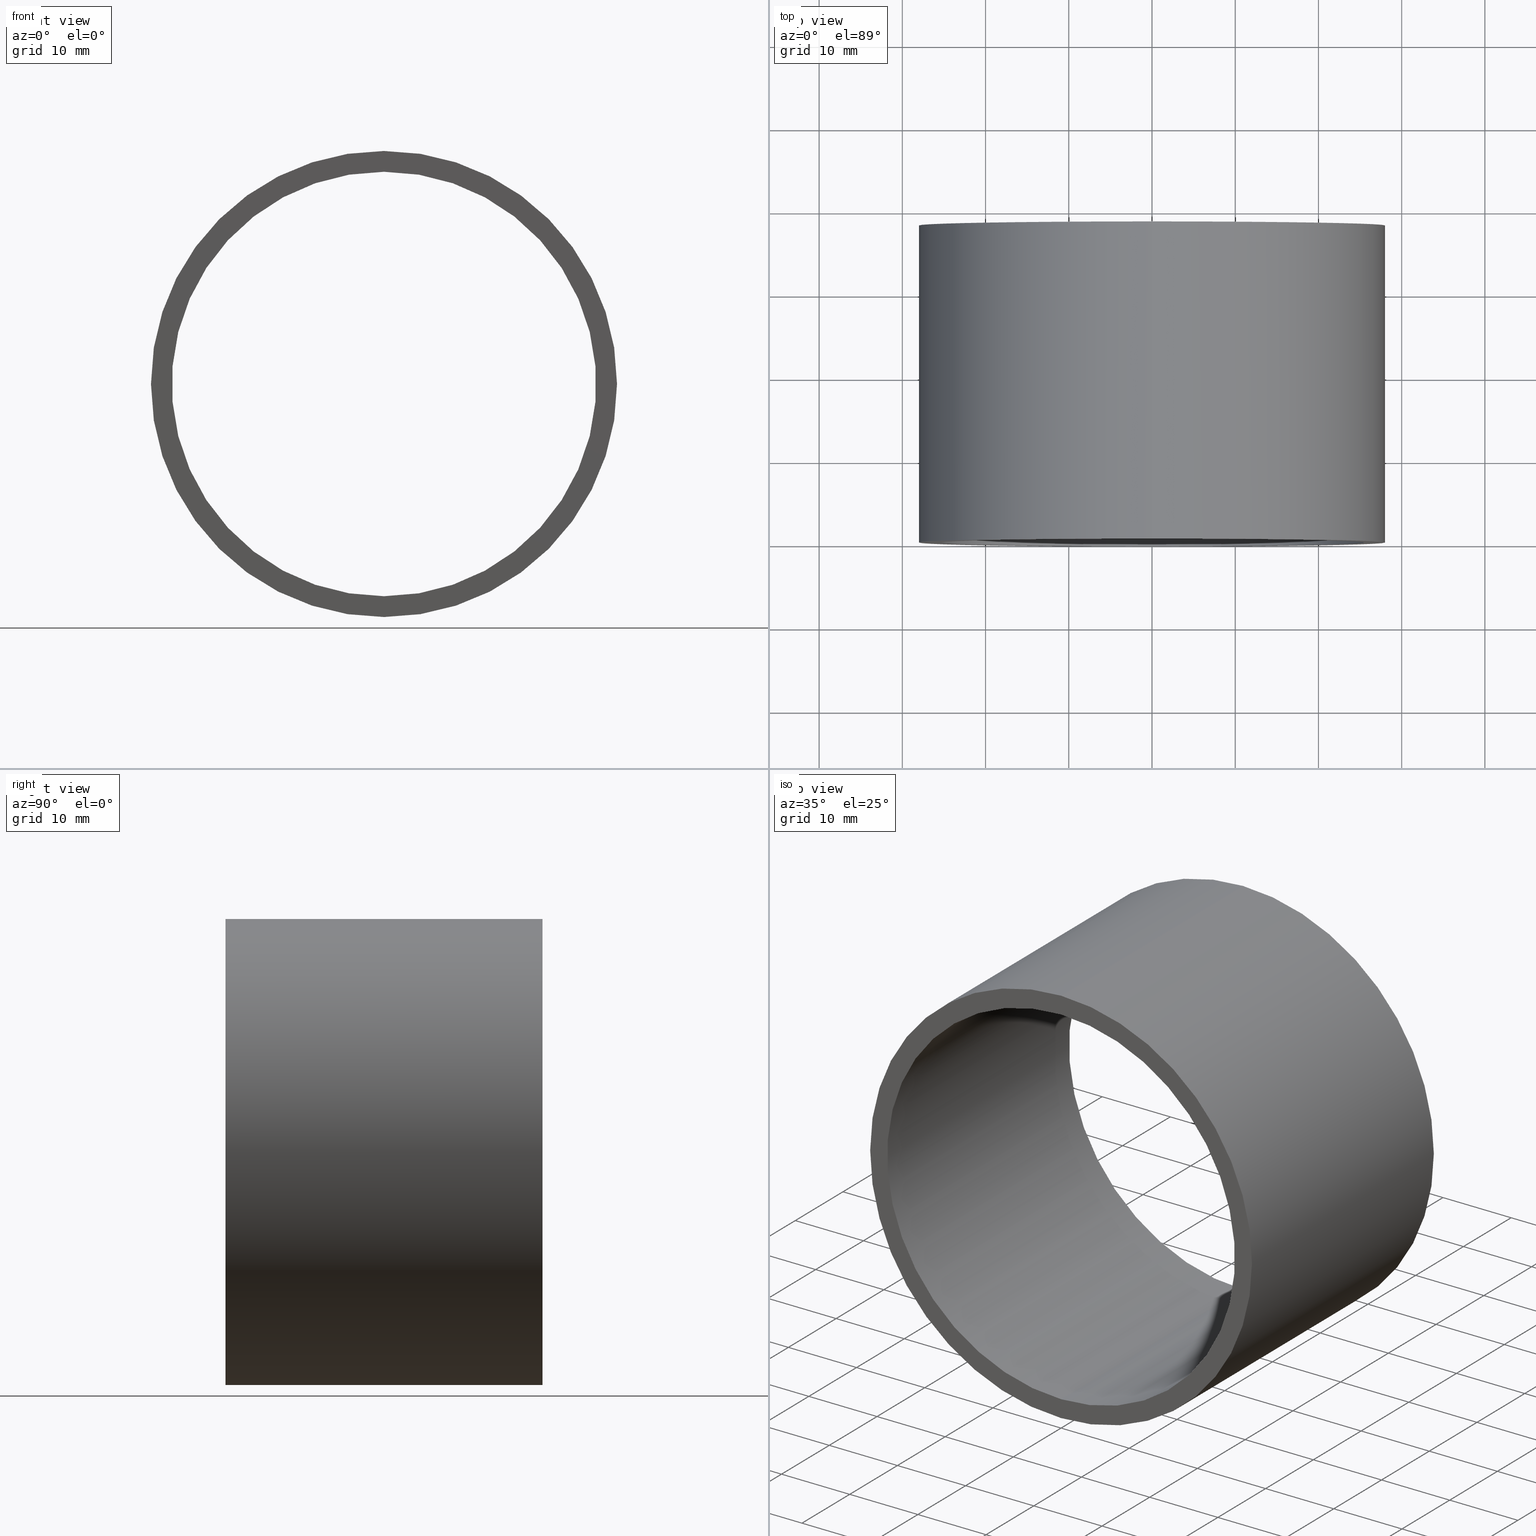
[diagram: canonical four-view strip — front | top / right | iso, engineering-drawing reading convention]
A machine part, canonical four-view strip (front | top / right | iso — engineering-drawing reading convention). The complete STEP part file that produces these views, byte-faithful:
ISO-10303-21;
HEADER;
FILE_DESCRIPTION (( 'STEP AP214' ),
    '1' );
FILE_NAME ('503008.STEP',
    '2019-09-04T06:18:58',
    ( '' ),
    ( '' ),
    'SwSTEP 2.0',
    'SolidWorks 2016',
    '' );
FILE_SCHEMA (( 'AUTOMOTIVE_DESIGN' ));
ENDSEC;

DATA;
#1 = EDGE_CURVE ( 'NONE', #181, #240, #42, .T. ) ;
#2 = FACE_BOUND ( 'NONE', #231, .T. ) ;
#3 =( LENGTH_UNIT ( ) NAMED_UNIT ( * ) SI_UNIT ( .MILLI., .METRE. ) );
#4 = MANIFOLD_SOLID_BREP ( '��ת1', #103 ) ;
#5 = DIRECTION ( 'NONE',  ( 0.0000000000000000000, 0.0000000000000000000, 1.000000000000000000 ) ) ;
#6 = SURFACE_STYLE_USAGE ( .BOTH. , #156 ) ;
#7 = AXIS2_PLACEMENT_3D ( 'NONE', #226, #164, #53 ) ;
#8 = CARTESIAN_POINT ( 'NONE',  ( 3.122849337825752200E-015, 38.09999999999999400, -25.50000000000001100 ) ) ;
#9 = ADVANCED_BREP_SHAPE_REPRESENTATION ( '503008', ( #4, #7 ), #221 ) ;
#10 = CIRCLE ( 'NONE', #189, 25.50000000000001100 ) ;
#11 = VERTEX_POINT ( 'NONE', #8 ) ;
#12 = DIRECTION ( 'NONE',  ( 0.0000000000000000000, 0.0000000000000000000, 1.000000000000000000 ) ) ;
#13 = CARTESIAN_POINT ( 'NONE',  ( 0.0000000000000000000, 38.09999999999999400, 0.0000000000000000000 ) ) ;
#14 = ADVANCED_FACE ( 'NONE', ( #2, #97 ), #153, .F. ) ;
#15 = ORIENTED_EDGE ( 'NONE', *, *, #122, .F. ) ;
#16 =( GEOMETRIC_REPRESENTATION_CONTEXT ( 3 ) GLOBAL_UNCERTAINTY_ASSIGNED_CONTEXT ( ( #86 ) ) GLOBAL_UNIT_ASSIGNED_CONTEXT ( ( #191, #110, #93 ) ) REPRESENTATION_CONTEXT ( 'NONE', 'WORKASPACE' ) );
#17 = CIRCLE ( 'NONE', #72, 28.00000000000002100 ) ;
#18 = DIRECTION ( 'NONE',  ( -0.0000000000000000000, 1.000000000000000000, -0.0000000000000000000 ) ) ;
#19 = CYLINDRICAL_SURFACE ( 'NONE', #163, 28.00000000000002100 ) ;
#20 = CARTESIAN_POINT ( 'NONE',  ( 0.0000000000000000000, -2.775557561562891400E-014, 28.00000000000002100 ) ) ;
#21 = AXIS2_PLACEMENT_3D ( 'NONE', #76, #195, #12 ) ;
#22 = COLOUR_RGB ( '',1.000000000000000000, 1.000000000000000000, 1.000000000000000000 ) ;
#23 = CARTESIAN_POINT ( 'NONE',  ( 0.0000000000000000000, 38.09999999999999400, 0.0000000000000000000 ) ) ;
#24 = VECTOR ( 'NONE', #18, 1000.000000000000000 ) ;
#25 = DIRECTION ( 'NONE',  ( 0.0000000000000000000, 0.0000000000000000000, 1.000000000000000000 ) ) ;
#26 = FILL_AREA_STYLE ('',( #74 ) ) ;
#27 = EDGE_CURVE ( 'NONE', #11, #31, #99, .T. ) ;
#28 = ORIENTED_EDGE ( 'NONE', *, *, #209, .F. ) ;
#29 = DIRECTION ( 'NONE',  ( 0.0000000000000000000, 0.0000000000000000000, 1.000000000000000000 ) ) ;
#30 = CYLINDRICAL_SURFACE ( 'NONE', #130, 25.50000000000001400 ) ;
#31 = VERTEX_POINT ( 'NONE', #215 ) ;
#32 = CARTESIAN_POINT ( 'NONE',  ( 0.0000000000000000000, -2.775557561562891400E-014, 0.0000000000000000000 ) ) ;
#33 = UNCERTAINTY_MEASURE_WITH_UNIT (LENGTH_MEASURE( 1.000000000000000100E-005 ), #3, 'distance_accuracy_value', 'NONE');
#34 = CARTESIAN_POINT ( 'NONE',  ( 3.429011037612591600E-015, -2.775557561562891400E-014, -28.00000000000002100 ) ) ;
#35 = EDGE_LOOP ( 'NONE', ( #187, #132 ) ) ;
#36 =( NAMED_UNIT ( * ) PLANE_ANGLE_UNIT ( ) SI_UNIT ( $, .RADIAN. ) );
#37 =( NAMED_UNIT ( * ) SI_UNIT ( $, .STERADIAN. ) SOLID_ANGLE_UNIT ( ) );
#38 = PRODUCT_CONTEXT ( 'NONE', #166, 'mechanical' ) ;
#39 = FILL_AREA_STYLE_COLOUR ( '', #230 ) ;
#40 = VERTEX_POINT ( 'NONE', #133 ) ;
#41 = SURFACE_STYLE_FILL_AREA ( #26 ) ;
#42 = CIRCLE ( 'NONE', #92, 28.00000000000002100 ) ;
#43 = DIRECTION ( 'NONE',  ( -0.0000000000000000000, 1.000000000000000000, -0.0000000000000000000 ) ) ;
#44 =( NAMED_UNIT ( * ) PLANE_ANGLE_UNIT ( ) SI_UNIT ( $, .RADIAN. ) );
#45 = SURFACE_STYLE_USAGE ( .BOTH. , #105 ) ;
#46 = ORIENTED_EDGE ( 'NONE', *, *, #109, .F. ) ;
#47 = PRODUCT_DEFINITION_FORMATION_WITH_SPECIFIED_SOURCE ( '�κ�', '', #184, .NOT_KNOWN. ) ;
#48 = DIRECTION ( 'NONE',  ( 0.0000000000000000000, -1.000000000000000000, 0.0000000000000000000 ) ) ;
#49 = EDGE_CURVE ( 'NONE', #31, #11, #10, .T. ) ;
#50 = AXIS2_PLACEMENT_3D ( 'NONE', #96, #48, #62 ) ;
#51 = LINE ( 'NONE', #202, #144 ) ;
#52 = CARTESIAN_POINT ( 'NONE',  ( 0.0000000000000000000, 161.3761669434274500, 0.0000000000000000000 ) ) ;
#53 = DIRECTION ( 'NONE',  ( 1.000000000000000000, 0.0000000000000000000, 0.0000000000000000000 ) ) ;
#54 = EDGE_LOOP ( 'NONE', ( #82, #182 ) ) ;
#55 = SURFACE_STYLE_USAGE ( .BOTH. , #128 ) ;
#56 = DIRECTION ( 'NONE',  ( 0.0000000000000000000, 0.0000000000000000000, 1.000000000000000000 ) ) ;
#57 = DIRECTION ( 'NONE',  ( 0.0000000000000000000, 0.0000000000000000000, 1.000000000000000000 ) ) ;
#58 = DIRECTION ( 'NONE',  ( 0.0000000000000000000, 0.0000000000000000000, 1.000000000000000000 ) ) ;
#59 = FACE_OUTER_BOUND ( 'NONE', #236, .T. ) ;
#60 = EDGE_LOOP ( 'NONE', ( #129, #155 ) ) ;
#61 = DIRECTION ( 'NONE',  ( -0.0000000000000000000, 1.000000000000000000, -0.0000000000000000000 ) ) ;
#62 = DIRECTION ( 'NONE',  ( 0.0000000000000000000, -0.0000000000000000000, -1.000000000000000000 ) ) ;
#63 = ADVANCED_FACE ( 'NONE', ( #59 ), #168, .F. ) ;
#64 = CARTESIAN_POINT ( 'NONE',  ( 3.122849337825752600E-015, 161.3761669434274500, -25.50000000000001400 ) ) ;
#65 = EDGE_CURVE ( 'NONE', #207, #181, #217, .T. ) ;
#66 = CARTESIAN_POINT ( 'NONE',  ( 0.0000000000000000000, -2.775557561562891400E-014, 0.0000000000000000000 ) ) ;
#67 = STYLED_ITEM ( 'NONE', ( #151 ), #63 ) ;
#68 = SURFACE_STYLE_FILL_AREA ( #90 ) ;
#69 =( NAMED_UNIT ( * ) PLANE_ANGLE_UNIT ( ) SI_UNIT ( $, .RADIAN. ) );
#70 = FACE_OUTER_BOUND ( 'NONE', #125, .T. ) ;
#71 = PRESENTATION_LAYER_ASSIGNMENT (  '', '', ( #146 ) ) ;
#72 = AXIS2_PLACEMENT_3D ( 'NONE', #32, #239, #115 ) ;
#73 = ORIENTED_EDGE ( 'NONE', *, *, #194, .T. ) ;
#74 = FILL_AREA_STYLE_COLOUR ( '', #158 ) ;
#75 = ORIENTED_EDGE ( 'NONE', *, *, #219, .T. ) ;
#76 = CARTESIAN_POINT ( 'NONE',  ( 25.50000000000001400, -1.390324872067691800E-014, 0.0000000000000000000 ) ) ;
#77 = DIRECTION ( 'NONE',  ( -0.0000000000000000000, 1.000000000000000000, -0.0000000000000000000 ) ) ;
#78 = EDGE_CURVE ( 'NONE', #240, #181, #205, .T. ) ;
#79 = DIRECTION ( 'NONE',  ( -0.0000000000000000000, 1.000000000000000000, -0.0000000000000000000 ) ) ;
#80 = ORIENTED_EDGE ( 'NONE', *, *, #78, .F. ) ;
#81 = PRODUCT_DEFINITION_SHAPE ( 'NONE', 'NONE',  #188 ) ;
#82 = ORIENTED_EDGE ( 'NONE', *, *, #1, .T. ) ;
#83 = PRODUCT_RELATED_PRODUCT_CATEGORY ( 'part', '', ( #184 ) ) ;
#84 =( LENGTH_UNIT ( ) NAMED_UNIT ( * ) SI_UNIT ( .MILLI., .METRE. ) );
#85 = DIRECTION ( 'NONE',  ( -0.0000000000000000000, 1.000000000000000000, -0.0000000000000000000 ) ) ;
#86 = UNCERTAINTY_MEASURE_WITH_UNIT (LENGTH_MEASURE( 1.000000000000000100E-005 ), #191, 'distance_accuracy_value', 'NONE');
#87 = APPLICATION_CONTEXT ( 'automotive_design' ) ;
#88 = SURFACE_STYLE_FILL_AREA ( #242 ) ;
#89 = VERTEX_POINT ( 'NONE', #212 ) ;
#90 = FILL_AREA_STYLE ('',( #131 ) ) ;
#91 = PRESENTATION_STYLE_ASSIGNMENT (( #6 ) ) ;
#92 = AXIS2_PLACEMENT_3D ( 'NONE', #23, #43, #57 ) ;
#93 =( NAMED_UNIT ( * ) SI_UNIT ( $, .STERADIAN. ) SOLID_ANGLE_UNIT ( ) );
#94 = SURFACE_STYLE_USAGE ( .BOTH. , #152 ) ;
#95 = DIRECTION ( 'NONE',  ( 0.0000000000000000000, 0.0000000000000000000, 1.000000000000000000 ) ) ;
#96 = CARTESIAN_POINT ( 'NONE',  ( 25.50000000000001100, 38.09999999999998700, 0.0000000000000000000 ) ) ;
#97 = FACE_OUTER_BOUND ( 'NONE', #54, .T. ) ;
#98 = ORIENTED_EDGE ( 'NONE', *, *, #173, .T. ) ;
#99 = CIRCLE ( 'NONE', #201, 25.50000000000001100 ) ;
#100 = MECHANICAL_DESIGN_GEOMETRIC_PRESENTATION_REPRESENTATION (  '', ( #146 ), #16 ) ;
#101 = DIRECTION ( 'NONE',  ( -0.0000000000000000000, 1.000000000000000000, -0.0000000000000000000 ) ) ;
#102 = CARTESIAN_POINT ( 'NONE',  ( 3.429011037612591600E-015, 161.3761669434274500, -28.00000000000002100 ) ) ;
#103 = CLOSED_SHELL ( 'NONE', ( #196, #241, #117, #197, #14, #63 ) ) ;
#104 =( LENGTH_UNIT ( ) NAMED_UNIT ( * ) SI_UNIT ( .MILLI., .METRE. ) );
#105 = SURFACE_SIDE_STYLE ('',( #68 ) ) ;
#106 = MECHANICAL_DESIGN_GEOMETRIC_PRESENTATION_REPRESENTATION (  '', ( #67 ), #136 ) ;
#107 = LINE ( 'NONE', #64, #211 ) ;
#108 =( GEOMETRIC_REPRESENTATION_CONTEXT ( 3 ) GLOBAL_UNCERTAINTY_ASSIGNED_CONTEXT ( ( #33 ) ) GLOBAL_UNIT_ASSIGNED_CONTEXT ( ( #3, #127, #37 ) ) REPRESENTATION_CONTEXT ( 'NONE', 'WORKASPACE' ) );
#109 = EDGE_CURVE ( 'NONE', #89, #11, #107, .T. ) ;
#110 =( NAMED_UNIT ( * ) PLANE_ANGLE_UNIT ( ) SI_UNIT ( $, .RADIAN. ) );
#111 = DIRECTION ( 'NONE',  ( 0.0000000000000000000, 0.0000000000000000000, 1.000000000000000000 ) ) ;
#112 = DIRECTION ( 'NONE',  ( -0.0000000000000000000, 1.000000000000000000, -0.0000000000000000000 ) ) ;
#113 = ORIENTED_EDGE ( 'NONE', *, *, #194, .F. ) ;
#114 = DIRECTION ( 'NONE',  ( -0.0000000000000000000, 1.000000000000000000, -0.0000000000000000000 ) ) ;
#115 = DIRECTION ( 'NONE',  ( 0.0000000000000000000, 0.0000000000000000000, 1.000000000000000000 ) ) ;
#116 = CIRCLE ( 'NONE', #179, 28.00000000000002100 ) ;
#117 = ADVANCED_FACE ( 'NONE', ( #193, #138 ), #214, .F. ) ;
#118 = ORIENTED_EDGE ( 'NONE', *, *, #65, .F. ) ;
#119 = UNCERTAINTY_MEASURE_WITH_UNIT (LENGTH_MEASURE( 1.000000000000000100E-005 ), #104, 'distance_accuracy_value', 'NONE');
#120 = PRESENTATION_LAYER_ASSIGNMENT (  '', '', ( #176 ) ) ;
#121 = ORIENTED_EDGE ( 'NONE', *, *, #49, .F. ) ;
#122 = EDGE_CURVE ( 'NONE', #40, #89, #154, .T. ) ;
#123 = LINE ( 'NONE', #102, #24 ) ;
#124 = CARTESIAN_POINT ( 'NONE',  ( 3.429011037612591600E-015, 38.09999999999999400, -28.00000000000002100 ) ) ;
#125 = EDGE_LOOP ( 'NONE', ( #28, #169, #172, #113 ) ) ;
#126 = AXIS2_PLACEMENT_3D ( 'NONE', #234, #232, #95 ) ;
#127 =( NAMED_UNIT ( * ) PLANE_ANGLE_UNIT ( ) SI_UNIT ( $, .RADIAN. ) );
#128 = SURFACE_SIDE_STYLE ('',( #161 ) ) ;
#129 = ORIENTED_EDGE ( 'NONE', *, *, #173, .F. ) ;
#130 = AXIS2_PLACEMENT_3D ( 'NONE', #223, #85, #186 ) ;
#131 = FILL_AREA_STYLE_COLOUR ( '', #22 ) ;
#132 = ORIENTED_EDGE ( 'NONE', *, *, #209, .T. ) ;
#133 = CARTESIAN_POINT ( 'NONE',  ( 0.0000000000000000000, -2.775557561562891400E-014, 25.50000000000001400 ) ) ;
#134 = VECTOR ( 'NONE', #61, 1000.000000000000000 ) ;
#135 = DIRECTION ( 'NONE',  ( -0.0000000000000000000, 1.000000000000000000, -0.0000000000000000000 ) ) ;
#136 =( GEOMETRIC_REPRESENTATION_CONTEXT ( 3 ) GLOBAL_UNCERTAINTY_ASSIGNED_CONTEXT ( ( #145 ) ) GLOBAL_UNIT_ASSIGNED_CONTEXT ( ( #237, #44, #213 ) ) REPRESENTATION_CONTEXT ( 'NONE', 'WORKASPACE' ) );
#137 = DIRECTION ( 'NONE',  ( -0.0000000000000000000, 1.000000000000000000, -0.0000000000000000000 ) ) ;
#138 = FACE_BOUND ( 'NONE', #35, .T. ) ;
#139 = FILL_AREA_STYLE_COLOUR ( '', #140 ) ;
#140 = COLOUR_RGB ( '',1.000000000000000000, 1.000000000000000000, 1.000000000000000000 ) ;
#141 = EDGE_LOOP ( 'NONE', ( #98, #75, #220, #118 ) ) ;
#142 = AXIS2_PLACEMENT_3D ( 'NONE', #149, #148, #56 ) ;
#143 = PRESENTATION_STYLE_ASSIGNMENT (( #55 ) ) ;
#144 = VECTOR ( 'NONE', #79, 1000.000000000000000 ) ;
#145 = UNCERTAINTY_MEASURE_WITH_UNIT (LENGTH_MEASURE( 1.000000000000000100E-005 ), #237, 'distance_accuracy_value', 'NONE');
#146 = STYLED_ITEM ( 'NONE', ( #203 ), #4 ) ;
#147 = DIRECTION ( 'NONE',  ( 0.0000000000000000000, 0.0000000000000000000, 1.000000000000000000 ) ) ;
#148 = DIRECTION ( 'NONE',  ( -0.0000000000000000000, 1.000000000000000000, -0.0000000000000000000 ) ) ;
#149 = CARTESIAN_POINT ( 'NONE',  ( 0.0000000000000000000, -2.775557561562891400E-014, 0.0000000000000000000 ) ) ;
#150 = MECHANICAL_DESIGN_GEOMETRIC_PRESENTATION_REPRESENTATION (  '', ( #176 ), #233 ) ;
#151 = PRESENTATION_STYLE_ASSIGNMENT (( #94 ) ) ;
#152 = SURFACE_SIDE_STYLE ('',( #41 ) ) ;
#153 = PLANE ( 'NONE',  #50 ) ;
#154 = CIRCLE ( 'NONE', #198, 25.50000000000001400 ) ;
#155 = ORIENTED_EDGE ( 'NONE', *, *, #180, .F. ) ;
#156 = SURFACE_SIDE_STYLE ('',( #88 ) ) ;
#157 = PRESENTATION_LAYER_ASSIGNMENT (  '', '', ( #238 ) ) ;
#158 = COLOUR_RGB ( '',1.000000000000000000, 1.000000000000000000, 1.000000000000000000 ) ;
#159 = FACE_OUTER_BOUND ( 'NONE', #141, .T. ) ;
#160 = ORIENTED_EDGE ( 'NONE', *, *, #27, .F. ) ;
#161 = SURFACE_STYLE_FILL_AREA ( #183 ) ;
#162 =( NAMED_UNIT ( * ) SI_UNIT ( $, .STERADIAN. ) SOLID_ANGLE_UNIT ( ) );
#163 = AXIS2_PLACEMENT_3D ( 'NONE', #185, #208, #147 ) ;
#164 = DIRECTION ( 'NONE',  ( 0.0000000000000000000, 0.0000000000000000000, 1.000000000000000000 ) ) ;
#165 = APPLICATION_PROTOCOL_DEFINITION ( 'draft international standard', 'automotive_design', 1998, #166 ) ;
#166 = APPLICATION_CONTEXT ( 'automotive_design' ) ;
#167 = ORIENTED_EDGE ( 'NONE', *, *, #49, .T. ) ;
#168 = CYLINDRICAL_SURFACE ( 'NONE', #126, 25.50000000000001400 ) ;
#169 = ORIENTED_EDGE ( 'NONE', *, *, #109, .T. ) ;
#170 = CARTESIAN_POINT ( 'NONE',  ( 0.0000000000000000000, 161.3761669434274500, 28.00000000000002100 ) ) ;
#171 = MECHANICAL_DESIGN_GEOMETRIC_PRESENTATION_REPRESENTATION (  '', ( #238 ), #108 ) ;
#172 = ORIENTED_EDGE ( 'NONE', *, *, #27, .T. ) ;
#173 = EDGE_CURVE ( 'NONE', #207, #229, #116, .T. ) ;
#174 = DIRECTION ( 'NONE',  ( -0.0000000000000000000, 1.000000000000000000, -0.0000000000000000000 ) ) ;
#175 = CARTESIAN_POINT ( 'NONE',  ( 0.0000000000000000000, 38.09999999999999400, 28.00000000000002100 ) ) ;
#176 = STYLED_ITEM ( 'NONE', ( #91 ), #196 ) ;
#177 = FACE_OUTER_BOUND ( 'NONE', #218, .T. ) ;
#178 = ORIENTED_EDGE ( 'NONE', *, *, #219, .F. ) ;
#179 = AXIS2_PLACEMENT_3D ( 'NONE', #200, #77, #29 ) ;
#180 = EDGE_CURVE ( 'NONE', #229, #207, #17, .T. ) ;
#181 = VERTEX_POINT ( 'NONE', #175 ) ;
#182 = ORIENTED_EDGE ( 'NONE', *, *, #78, .T. ) ;
#183 = FILL_AREA_STYLE ('',( #39 ) ) ;
#184 = PRODUCT ( '503008', '503008', '', ( #38 ) ) ;
#185 = CARTESIAN_POINT ( 'NONE',  ( 0.0000000000000000000, 161.3761669434274500, 0.0000000000000000000 ) ) ;
#186 = DIRECTION ( 'NONE',  ( 0.0000000000000000000, 0.0000000000000000000, 1.000000000000000000 ) ) ;
#187 = ORIENTED_EDGE ( 'NONE', *, *, #122, .T. ) ;
#188 = PRODUCT_DEFINITION ( 'δ֪', '', #47, #235 ) ;
#189 = AXIS2_PLACEMENT_3D ( 'NONE', #192, #137, #25 ) ;
#190 = UNCERTAINTY_MEASURE_WITH_UNIT (LENGTH_MEASURE( 1.000000000000000100E-005 ), #84, 'distance_accuracy_value', 'NONE');
#191 =( LENGTH_UNIT ( ) NAMED_UNIT ( * ) SI_UNIT ( .MILLI., .METRE. ) );
#192 = CARTESIAN_POINT ( 'NONE',  ( 0.0000000000000000000, 38.09999999999999400, 0.0000000000000000000 ) ) ;
#193 = FACE_OUTER_BOUND ( 'NONE', #60, .T. ) ;
#194 = EDGE_CURVE ( 'NONE', #40, #31, #51, .T. ) ;
#195 = DIRECTION ( 'NONE',  ( -0.0000000000000000000, 1.000000000000000000, 0.0000000000000000000 ) ) ;
#196 = ADVANCED_FACE ( 'NONE', ( #70 ), #30, .F. ) ;
#197 = ADVANCED_FACE ( 'NONE', ( #177 ), #19, .T. ) ;
#198 = AXIS2_PLACEMENT_3D ( 'NONE', #66, #174, #199 ) ;
#199 = DIRECTION ( 'NONE',  ( 0.0000000000000000000, 0.0000000000000000000, 1.000000000000000000 ) ) ;
#200 = CARTESIAN_POINT ( 'NONE',  ( 0.0000000000000000000, -2.775557561562891400E-014, 0.0000000000000000000 ) ) ;
#201 = AXIS2_PLACEMENT_3D ( 'NONE', #216, #114, #58 ) ;
#202 = CARTESIAN_POINT ( 'NONE',  ( 0.0000000000000000000, 161.3761669434274500, 25.50000000000001400 ) ) ;
#203 = PRESENTATION_STYLE_ASSIGNMENT (( #45 ) ) ;
#204 = PRESENTATION_LAYER_ASSIGNMENT (  '', '', ( #67 ) ) ;
#205 = CIRCLE ( 'NONE', #222, 28.00000000000002100 ) ;
#206 = CYLINDRICAL_SURFACE ( 'NONE', #244, 28.00000000000002100 ) ;
#207 = VERTEX_POINT ( 'NONE', #20 ) ;
#208 = DIRECTION ( 'NONE',  ( -0.0000000000000000000, 1.000000000000000000, -0.0000000000000000000 ) ) ;
#209 = EDGE_CURVE ( 'NONE', #89, #40, #224, .T. ) ;
#210 = SHAPE_DEFINITION_REPRESENTATION ( #81, #9 ) ;
#211 = VECTOR ( 'NONE', #112, 1000.000000000000000 ) ;
#212 = CARTESIAN_POINT ( 'NONE',  ( 3.122849337825752600E-015, -2.775557561562891400E-014, -25.50000000000001400 ) ) ;
#213 =( NAMED_UNIT ( * ) SI_UNIT ( $, .STERADIAN. ) SOLID_ANGLE_UNIT ( ) );
#214 = PLANE ( 'NONE',  #21 ) ;
#215 = CARTESIAN_POINT ( 'NONE',  ( 0.0000000000000000000, 38.09999999999999400, 25.50000000000001100 ) ) ;
#216 = CARTESIAN_POINT ( 'NONE',  ( 0.0000000000000000000, 38.09999999999999400, 0.0000000000000000000 ) ) ;
#217 = LINE ( 'NONE', #170, #134 ) ;
#218 = EDGE_LOOP ( 'NONE', ( #178, #243, #225, #80 ) ) ;
#219 = EDGE_CURVE ( 'NONE', #229, #240, #123, .T. ) ;
#220 = ORIENTED_EDGE ( 'NONE', *, *, #1, .F. ) ;
#221 =( GEOMETRIC_REPRESENTATION_CONTEXT ( 3 ) GLOBAL_UNCERTAINTY_ASSIGNED_CONTEXT ( ( #190 ) ) GLOBAL_UNIT_ASSIGNED_CONTEXT ( ( #84, #36, #162 ) ) REPRESENTATION_CONTEXT ( 'NONE', 'WORKASPACE' ) );
#222 = AXIS2_PLACEMENT_3D ( 'NONE', #13, #135, #111 ) ;
#223 = CARTESIAN_POINT ( 'NONE',  ( 0.0000000000000000000, 161.3761669434274500, 0.0000000000000000000 ) ) ;
#224 = CIRCLE ( 'NONE', #142, 25.50000000000001400 ) ;
#225 = ORIENTED_EDGE ( 'NONE', *, *, #65, .T. ) ;
#226 = CARTESIAN_POINT ( 'NONE',  ( 0.0000000000000000000, 0.0000000000000000000, 0.0000000000000000000 ) ) ;
#227 = APPLICATION_PROTOCOL_DEFINITION ( 'draft international standard', 'automotive_design', 1998, #87 ) ;
#228 =( NAMED_UNIT ( * ) SI_UNIT ( $, .STERADIAN. ) SOLID_ANGLE_UNIT ( ) );
#229 = VERTEX_POINT ( 'NONE', #34 ) ;
#230 = COLOUR_RGB ( '',1.000000000000000000, 1.000000000000000000, 1.000000000000000000 ) ;
#231 = EDGE_LOOP ( 'NONE', ( #121, #160 ) ) ;
#232 = DIRECTION ( 'NONE',  ( -0.0000000000000000000, 1.000000000000000000, -0.0000000000000000000 ) ) ;
#233 =( GEOMETRIC_REPRESENTATION_CONTEXT ( 3 ) GLOBAL_UNCERTAINTY_ASSIGNED_CONTEXT ( ( #119 ) ) GLOBAL_UNIT_ASSIGNED_CONTEXT ( ( #104, #69, #228 ) ) REPRESENTATION_CONTEXT ( 'NONE', 'WORKASPACE' ) );
#234 = CARTESIAN_POINT ( 'NONE',  ( 0.0000000000000000000, 161.3761669434274500, 0.0000000000000000000 ) ) ;
#235 = PRODUCT_DEFINITION_CONTEXT ( 'detailed design', #87, 'design' ) ;
#236 = EDGE_LOOP ( 'NONE', ( #46, #15, #73, #167 ) ) ;
#237 =( LENGTH_UNIT ( ) NAMED_UNIT ( * ) SI_UNIT ( .MILLI., .METRE. ) );
#238 = STYLED_ITEM ( 'NONE', ( #143 ), #9 ) ;
#239 = DIRECTION ( 'NONE',  ( -0.0000000000000000000, 1.000000000000000000, -0.0000000000000000000 ) ) ;
#240 = VERTEX_POINT ( 'NONE', #124 ) ;
#241 = ADVANCED_FACE ( 'NONE', ( #159 ), #206, .T. ) ;
#242 = FILL_AREA_STYLE ('',( #139 ) ) ;
#243 = ORIENTED_EDGE ( 'NONE', *, *, #180, .T. ) ;
#244 = AXIS2_PLACEMENT_3D ( 'NONE', #52, #101, #5 ) ;
ENDSEC;
END-ISO-10303-21;
